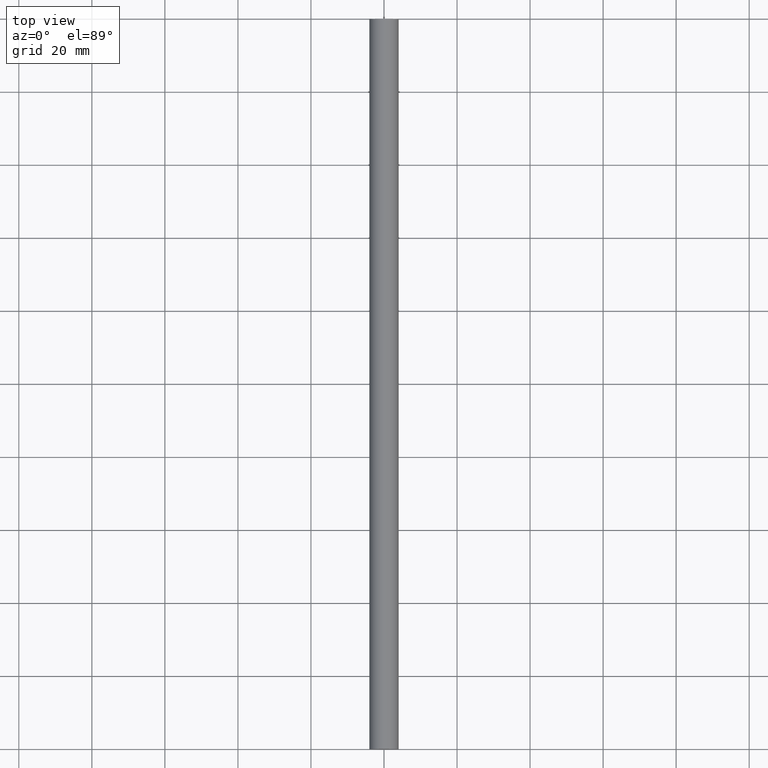
[diagram: clean part render]
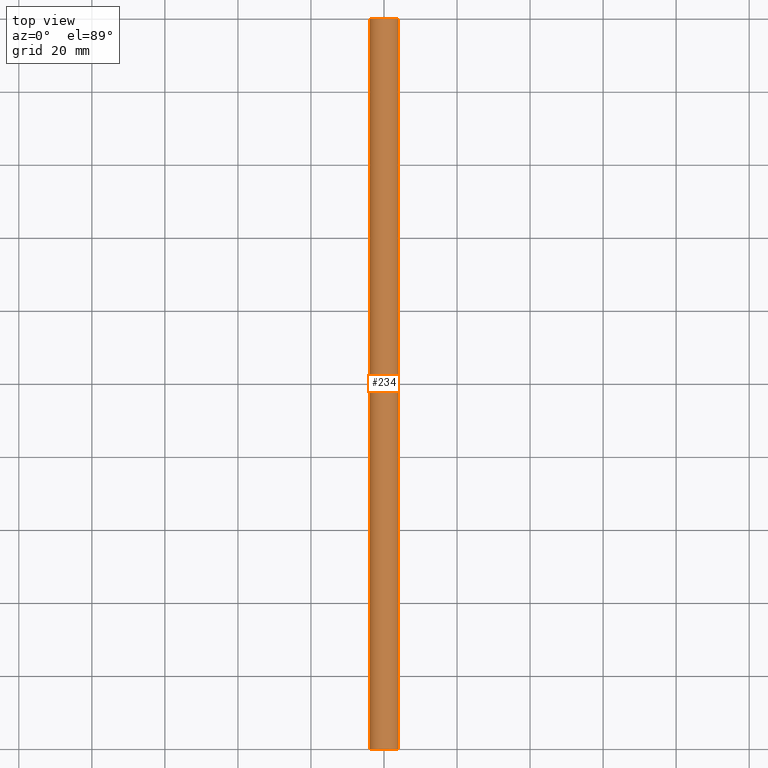
[diagram: same view with one face highlighted and labeled with its STEP entity id]
A machine part, top view. The second image highlights one B-rep face of the part: STEP entity #234.
In plain terms, the highlighted cylindrical surface (edge-blend (fillet) strip) has radius 4 mm, axis along (0, -1, 0).
Its self-contained STEP definition (entity closure, byte-faithful):
#1 = CARTESIAN_POINT ( 'NONE',  ( 4.000000000000000000, 1000.000000000000000, -0.5000000000000000000 ) ) ;
#13 = VERTEX_POINT ( 'NONE', #108 ) ;
#17 = AXIS2_PLACEMENT_3D ( 'NONE', #95, #185, #53 ) ;
#21 = VECTOR ( 'NONE', #55, 1000.000000000000000 ) ;
#53 = DIRECTION ( 'NONE',  ( 0.0000000000000000000, 0.0000000000000000000, 1.000000000000000000 ) ) ;
#55 = DIRECTION ( 'NONE',  ( 0.0000000000000000000, -1.000000000000000000, 0.0000000000000000000 ) ) ;
#67 = DIRECTION ( 'NONE',  ( 0.0000000000000000000, 0.0000000000000000000, -1.000000000000000000 ) ) ;
#79 = VERTEX_POINT ( 'NONE', #180 ) ;
#85 = VERTEX_POINT ( 'NONE', #128 ) ;
#92 = AXIS2_PLACEMENT_3D ( 'NONE', #219, #222, #163 ) ;
#94 = EDGE_LOOP ( 'NONE', ( #235, #181, #237, #97 ) ) ;
#95 = CARTESIAN_POINT ( 'NONE',  ( 0.0000000000000000000, 200.0000000000000000, -0.5000000000000000000 ) ) ;
#97 = ORIENTED_EDGE ( 'NONE', *, *, #178, .T. ) ;
#99 = LINE ( 'NONE', #184, #233 ) ;
#108 = CARTESIAN_POINT ( 'NONE',  ( 4.000000000000000000, 200.0000000000000000, -0.5000000000000000000 ) ) ;
#116 = EDGE_CURVE ( 'NONE', #13, #79, #230, .T. ) ;
#120 = LINE ( 'NONE', #1, #21 ) ;
#127 = FACE_OUTER_BOUND ( 'NONE', #94, .T. ) ;
#128 = CARTESIAN_POINT ( 'NONE',  ( 4.000000000000000000, 0.0000000000000000000, -0.5000000000000000000 ) ) ;
#144 = VERTEX_POINT ( 'NONE', #147 ) ;
#147 = CARTESIAN_POINT ( 'NONE',  ( -4.000000000000000000, 0.0000000000000000000, -0.5000000000000000000 ) ) ;
#149 = EDGE_CURVE ( 'NONE', #85, #144, #170, .T. ) ;
#155 = EDGE_CURVE ( 'NONE', #13, #85, #120, .T. ) ;
#162 = DIRECTION ( 'NONE',  ( 0.0000000000000000000, -1.000000000000000000, 0.0000000000000000000 ) ) ;
#163 = DIRECTION ( 'NONE',  ( 0.0000000000000000000, 0.0000000000000000000, 1.000000000000000000 ) ) ;
#170 = CIRCLE ( 'NONE', #92, 4.000000000000000000 ) ;
#178 = EDGE_CURVE ( 'NONE', #79, #144, #99, .T. ) ;
#180 = CARTESIAN_POINT ( 'NONE',  ( -4.000000000000000000, 200.0000000000000000, -0.5000000000000000000 ) ) ;
#181 = ORIENTED_EDGE ( 'NONE', *, *, #155, .F. ) ;
#184 = CARTESIAN_POINT ( 'NONE',  ( -4.000000000000000000, 1000.000000000000000, -0.5000000000000000000 ) ) ;
#185 = DIRECTION ( 'NONE',  ( -0.0000000000000000000, -1.000000000000000000, -0.0000000000000000000 ) ) ;
#187 = CYLINDRICAL_SURFACE ( 'NONE', #223, 4.000000000000000000 ) ;
#189 = CARTESIAN_POINT ( 'NONE',  ( 0.0000000000000000000, 1000.000000000000000, -0.5000000000000000000 ) ) ;
#197 = DIRECTION ( 'NONE',  ( 0.0000000000000000000, -1.000000000000000000, 0.0000000000000000000 ) ) ;
#219 = CARTESIAN_POINT ( 'NONE',  ( 0.0000000000000000000, 0.0000000000000000000, -0.5000000000000000000 ) ) ;
#222 = DIRECTION ( 'NONE',  ( -0.0000000000000000000, -1.000000000000000000, -0.0000000000000000000 ) ) ;
#223 = AXIS2_PLACEMENT_3D ( 'NONE', #189, #197, #67 ) ;
#230 = CIRCLE ( 'NONE', #17, 4.000000000000000000 ) ;
#233 = VECTOR ( 'NONE', #162, 1000.000000000000000 ) ;
#234 = ADVANCED_FACE ( 'NONE', ( #127 ), #187, .T. ) ;
#235 = ORIENTED_EDGE ( 'NONE', *, *, #149, .F. ) ;
#237 = ORIENTED_EDGE ( 'NONE', *, *, #116, .T. ) ;